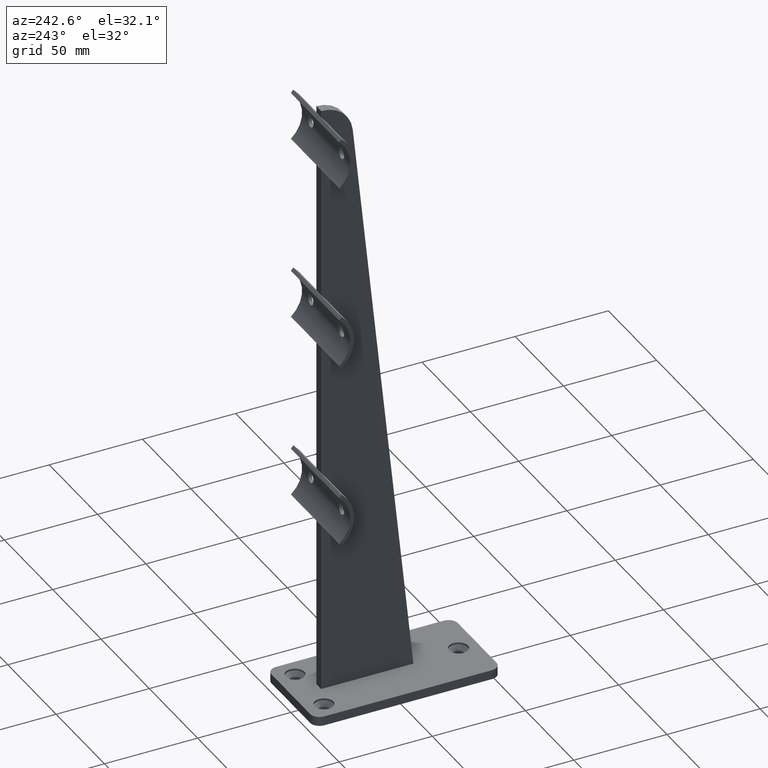
[diagram: clean part render]
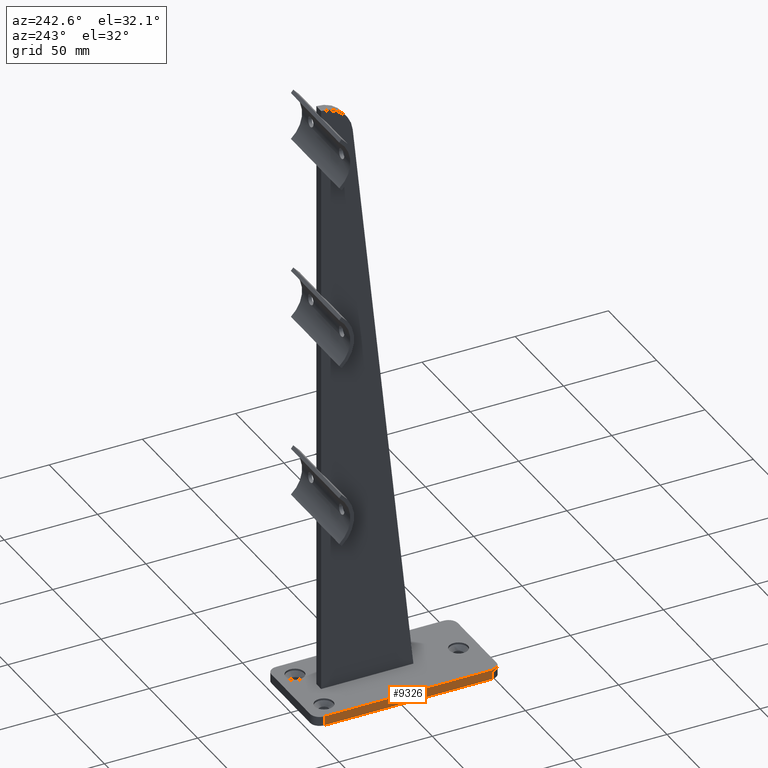
[diagram: same view with one face highlighted and labeled with its STEP entity id]
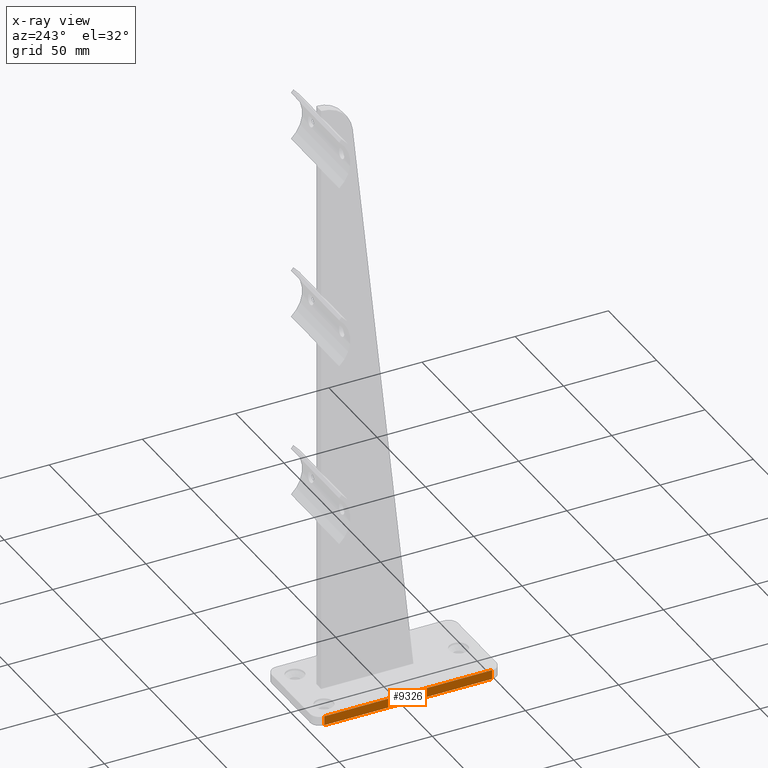
[diagram: x-ray of the same camera — body ghosted, the highlighted face saturated]
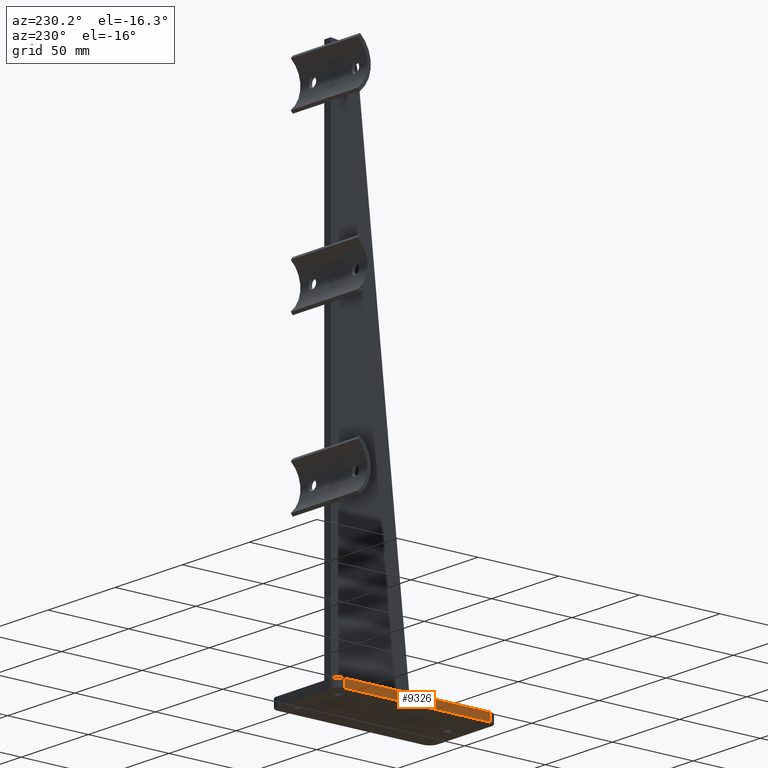
[diagram: same view with one face highlighted and labeled with its STEP entity id]
A machine part, auxiliary view. The second image highlights one B-rep face of the part: STEP entity #9326.
The next image is the same camera in x-ray: the body ghosted, the highlighted face saturated — about 0% of this face is hidden behind the body in this view.
A second angle (auxiliary view) of the same face is appended — the face is thin or edge-on in the first view.
In plain terms, the highlighted planar face has unit normal (1, 0, -0).
Its self-contained STEP definition (entity closure, byte-faithful):
#18 = EDGE_CURVE ( 'NONE', #8610, #5621, #1879, .T. ) ;
#1879 = LINE ( 'NONE', #6071, #8706 ) ;
#1895 = EDGE_CURVE ( 'NONE', #2656, #6524, #8113, .T. ) ;
#2094 = LINE ( 'NONE', #8705, #4928 ) ;
#2361 = PLANE ( 'NONE',  #6754 ) ;
#2485 = EDGE_CURVE ( 'NONE', #6524, #8610, #7663, .T. ) ;
#2656 = VERTEX_POINT ( 'NONE', #11478 ) ;
#3222 = ORIENTED_EDGE ( 'NONE', *, *, #18, .T. ) ;
#3398 = DIRECTION ( 'NONE',  ( 0.000000000000000000, -0.000000000000000000, 1.000000000000000000 ) ) ;
#3461 = CARTESIAN_POINT ( 'NONE',  ( -24.99999999999999645, -45.00000000000000711, 0.000000000000000000 ) ) ;
#3903 = DIRECTION ( 'NONE',  ( 0.000000000000000000, 0.000000000000000000, -1.000000000000000000 ) ) ;
#3918 = VECTOR ( 'NONE', #7614, 1000.000000000000000 ) ;
#4700 = CARTESIAN_POINT ( 'NONE',  ( -24.99999999999999645, -45.00000000000000711, 5.000000000000000000 ) ) ;
#4928 = VECTOR ( 'NONE', #9668, 1000.000000000000000 ) ;
#4982 = ORIENTED_EDGE ( 'NONE', *, *, #1895, .T. ) ;
#5135 = EDGE_CURVE ( 'NONE', #2656, #5621, #2094, .T. ) ;
#5496 = ORIENTED_EDGE ( 'NONE', *, *, #5135, .F. ) ;
#5621 = VERTEX_POINT ( 'NONE', #4700 ) ;
#5639 = CARTESIAN_POINT ( 'NONE',  ( -25.00000000000000711, 45.00000000000000000, 5.000000000000000000 ) ) ;
#6071 = CARTESIAN_POINT ( 'NONE',  ( -24.99999999999999645, -45.00000000000000711, 5.000000000000000000 ) ) ;
#6325 = VECTOR ( 'NONE', #3903, 1000.000000000000000 ) ;
#6524 = VERTEX_POINT ( 'NONE', #11403 ) ;
#6754 = AXIS2_PLACEMENT_3D ( 'NONE', #11901, #9925, #7275 ) ;
#7275 = DIRECTION ( 'NONE',  ( -1.040834085586084257E-16, 1.000000000000000000, 0.000000000000000000 ) ) ;
#7614 = DIRECTION ( 'NONE',  ( 1.040834085586084257E-16, -1.000000000000000000, 0.000000000000000000 ) ) ;
#7663 = LINE ( 'NONE', #10445, #3918 ) ;
#7905 = EDGE_LOOP ( 'NONE', ( #11598, #3222, #5496, #4982 ) ) ;
#8113 = LINE ( 'NONE', #5639, #6325 ) ;
#8610 = VERTEX_POINT ( 'NONE', #3461 ) ;
#8705 = CARTESIAN_POINT ( 'NONE',  ( -25.00000000000000711, 49.99999999999999289, 5.000000000000000000 ) ) ;
#8706 = VECTOR ( 'NONE', #3398, 1000.000000000000000 ) ;
#9326 = ADVANCED_FACE ( 'NONE', ( #9415 ), #2361, .F. ) ;
#9415 = FACE_OUTER_BOUND ( 'NONE', #7905, .T. ) ;
#9668 = DIRECTION ( 'NONE',  ( 1.040834085586084257E-16, -1.000000000000000000, 0.000000000000000000 ) ) ;
#9925 = DIRECTION ( 'NONE',  ( 1.000000000000000000, 1.040834085586084257E-16, -0.000000000000000000 ) ) ;
#10445 = CARTESIAN_POINT ( 'NONE',  ( -25.00000000000000711, 49.99999999999999289, 0.000000000000000000 ) ) ;
#11403 = CARTESIAN_POINT ( 'NONE',  ( -25.00000000000000711, 45.00000000000000000, 0.000000000000000000 ) ) ;
#11478 = CARTESIAN_POINT ( 'NONE',  ( -25.00000000000000711, 45.00000000000000000, 5.000000000000000000 ) ) ;
#11598 = ORIENTED_EDGE ( 'NONE', *, *, #2485, .T. ) ;
#11901 = CARTESIAN_POINT ( 'NONE',  ( -25.00000000000000711, 49.99999999999999289, 5.000000000000000000 ) ) ;